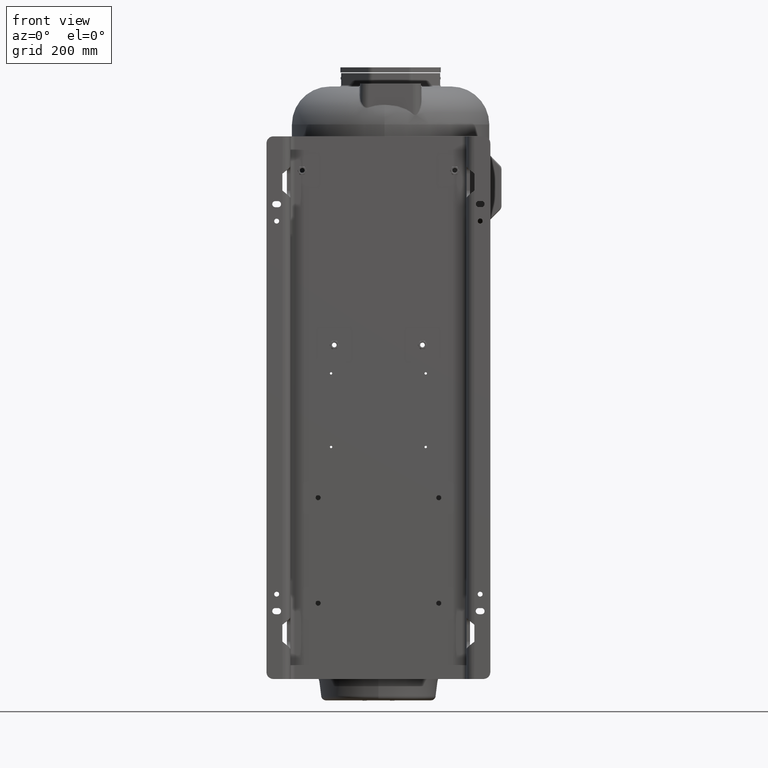
[diagram: clean part render]
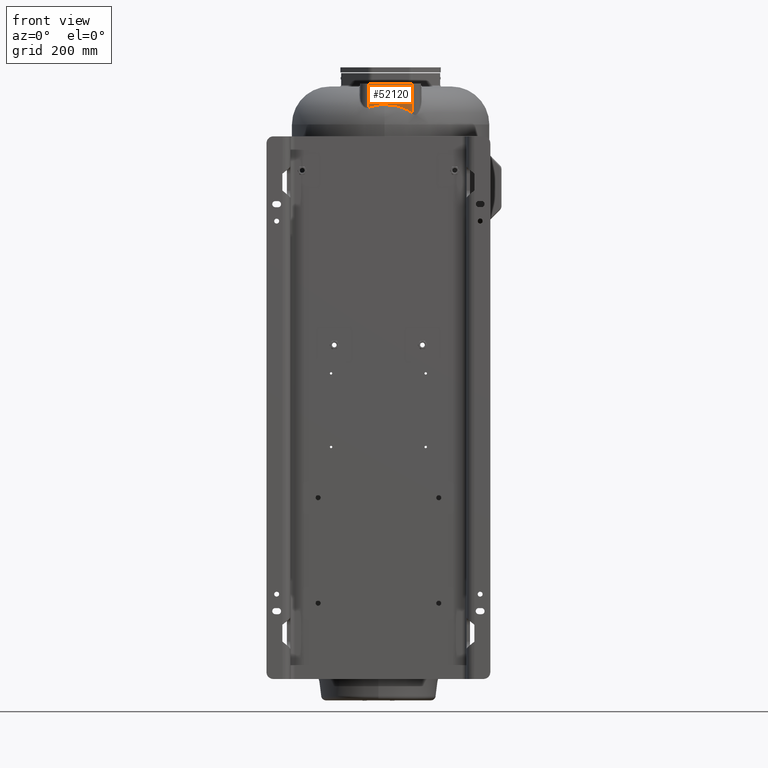
[diagram: same view with one face highlighted and labeled with its STEP entity id]
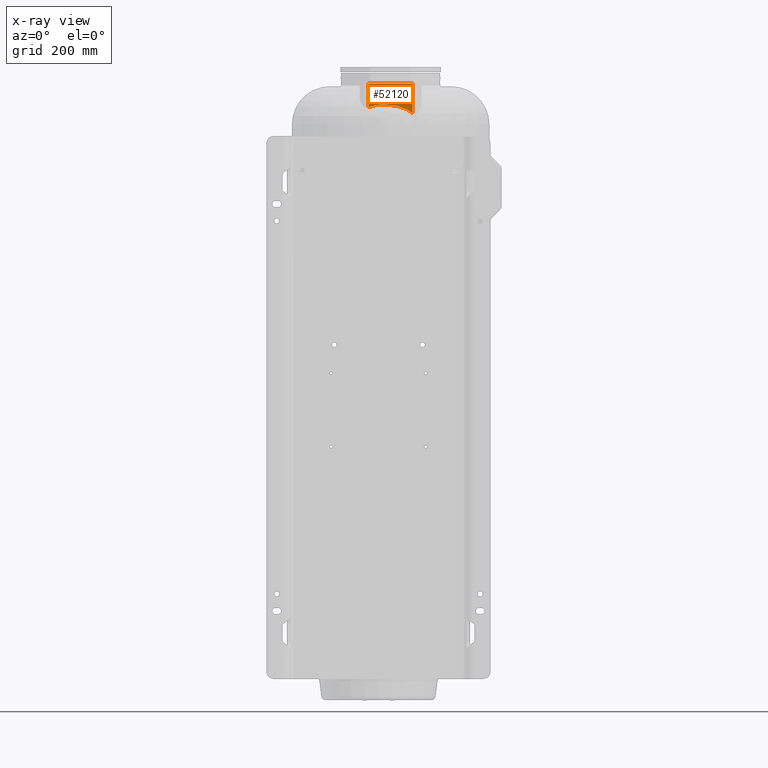
[diagram: x-ray of the same camera — body ghosted, the highlighted face saturated]
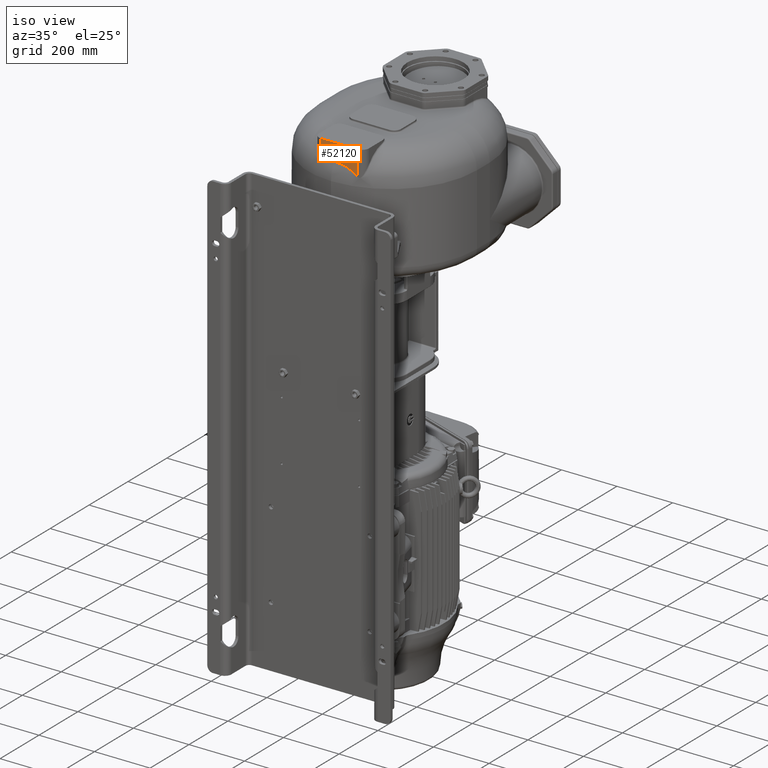
[diagram: same view with one face highlighted and labeled with its STEP entity id]
A machine part, front view. The second image highlights one B-rep face of the part: STEP entity #52120.
The next image is the same camera in x-ray: the body ghosted, the highlighted face saturated — about 0% of this face is hidden behind the body in this view.
A second angle (iso view) of the same face is appended — the face is thin or edge-on in the first view.
In plain terms, the highlighted planar face has unit normal (0, -1, 0).
Its self-contained STEP definition (entity closure, byte-faithful):
#16612=CARTESIAN_POINT('',(1.799999999999E1,3.500000116521E1,1.947877538268E2));
#16613=CARTESIAN_POINT('',(1.893111474395E1,3.500000259245E1,1.947877983079E2));
#16614=CARTESIAN_POINT('',(2.079200642048E1,3.499999879684E1,1.947731201491E2));
#16615=CARTESIAN_POINT('',(2.358170550593E1,3.500000032239E1,1.947063674517E2));
#16616=CARTESIAN_POINT('',(2.636264121826E1,3.499999991362E1,1.945950784415E2));
#16617=CARTESIAN_POINT('',(2.913025754608E1,3.500000002315E1,1.944395914431E2));
#16618=CARTESIAN_POINT('',(3.187934260217E1,3.499999999380E1,1.942405757118E2));
#16619=CARTESIAN_POINT('',(3.460493029411E1,3.500000000166E1,1.939989628785E2));
#16620=CARTESIAN_POINT('',(3.730198775214E1,3.499999999955E1,1.937160300688E2));
#16621=CARTESIAN_POINT('',(3.996583699470E1,3.500000000012E1,1.933931116169E2));
#16622=CARTESIAN_POINT('',(4.259345222702E1,3.499999999997E1,1.930310992011E2));
#16623=CARTESIAN_POINT('',(4.518172207805E1,3.500000000001E1,1.926311808253E2));
#16624=CARTESIAN_POINT('',(4.772764669143E1,3.5E1,1.921947288059E2));
#16625=CARTESIAN_POINT('',(5.022897804711E1,3.5E1,1.917231972042E2));
#16626=CARTESIAN_POINT('',(5.268357703894E1,3.5E1,1.912181717381E2));
#16627=CARTESIAN_POINT('',(5.508939654476E1,3.5E1,1.906814463528E2));
#16628=CARTESIAN_POINT('',(5.744452470279E1,3.5E1,1.901147131897E2));
#16629=CARTESIAN_POINT('',(5.974707574151E1,3.5E1,1.895193757112E2));
#16630=CARTESIAN_POINT('',(6.199510624818E1,3.5E1,1.888971405637E2));
#16631=CARTESIAN_POINT('',(6.418763942061E1,3.5E1,1.882496154371E2));
#16632=CARTESIAN_POINT('',(6.632488989263E1,3.5E1,1.875781709232E2));
#16633=CARTESIAN_POINT('',(6.840695051371E1,3.5E1,1.868842576085E2));
#16634=CARTESIAN_POINT('',(7.043407782946E1,3.5E1,1.861693799307E2));
#16635=CARTESIAN_POINT('',(7.240599497921E1,3.5E1,1.854350966972E2));
#16636=CARTESIAN_POINT('',(7.432231172984E1,3.5E1,1.846826993793E2));
#16637=CARTESIAN_POINT('',(7.618268082676E1,3.5E1,1.839136745427E2));
#16638=CARTESIAN_POINT('',(7.798766170244E1,3.5E1,1.831292224083E2));
#16639=CARTESIAN_POINT('',(7.973817062682E1,3.5E1,1.823304347967E2));
#16640=CARTESIAN_POINT('',(8.143518110957E1,3.5E1,1.815184001253E2));
#16641=CARTESIAN_POINT('',(8.307963300929E1,3.5E1,1.806942329532E2));
#16642=CARTESIAN_POINT('',(8.467183278011E1,3.5E1,1.798594198139E2));
#16643=CARTESIAN_POINT('',(8.621194640151E1,3.5E1,1.790150931046E2));
#16644=CARTESIAN_POINT('',(8.770005755409E1,3.5E1,1.781625353236E2));
#16645=CARTESIAN_POINT('',(8.913734260636E1,3.500000000001E1,1.773024972805E2));
#16646=CARTESIAN_POINT('',(9.052554471367E1,3.499999999996E1,1.764353710557E2));
#16647=CARTESIAN_POINT('',(9.186631532920E1,3.500000000014E1,1.755615571722E2));
#16648=CARTESIAN_POINT('',(9.316147768492E1,3.499999999946E1,1.746812767617E2));
#16649=CARTESIAN_POINT('',(9.441188438016E1,3.500000000202E1,1.737953709363E2));
#16650=CARTESIAN_POINT('',(9.561827029149E1,3.499999999247E1,1.729047891374E2));
#16651=CARTESIAN_POINT('',(9.678111693271E1,3.500000002811E1,1.720103593952E2));
#16652=CARTESIAN_POINT('',(9.790098148624E1,3.499999989511E1,1.711129100551E2));
#16653=CARTESIAN_POINT('',(9.897822254947E1,3.500000039145E1,1.702134451553E2));
#16654=CARTESIAN_POINT('',(1.000133803325E2,3.499999853908E1,1.693129966145E2));
#16655=CARTESIAN_POINT('',(1.006756331709E2,3.500000314784E1,1.687126186811E2));
#16656=CARTESIAN_POINT('',(1.009999999998E2,3.500000183762E1,1.684126001458E2));
#16658=CARTESIAN_POINT('',(-2.899999999901E1,3.499998976714E1,
1.869781190817E2));
#16659=CARTESIAN_POINT('',(-2.838536069959E1,3.499999021679E1,
1.872007819469E2));
#16660=CARTESIAN_POINT('',(-2.714078976666E1,3.500000454040E1,
1.876396049404E2));
#16661=CARTESIAN_POINT('',(-2.522692801615E1,3.499999878340E1,
1.882773657163E2));
#16662=CARTESIAN_POINT('',(-2.326779036685E1,3.500000032599E1,
1.888929807021E2));
#16663=CARTESIAN_POINT('',(-2.126442640740E1,3.499999991265E1,
1.894850744271E2));
#16664=CARTESIAN_POINT('',(-1.921828585659E1,3.500000002340E1,
1.900522985386E2));
#16665=CARTESIAN_POINT('',(-1.713015723382E1,3.499999999373E1,
1.905933469713E2));
#16666=CARTESIAN_POINT('',(-1.500029689803E1,3.500000000168E1,
1.911071206971E2));
#16667=CARTESIAN_POINT('',(-1.282949742840E1,3.499999999955E1,
1.915924407131E2));
#16668=CARTESIAN_POINT('',(-1.061990797847E1,3.500000000012E1,
1.920479609510E2));
#16669=CARTESIAN_POINT('',(-8.373576141043E0,3.499999999997E1,
1.924724735690E2));
#16670=CARTESIAN_POINT('',(-6.092672323828E0,3.500000000001E1,
1.928646296320E2));
#16671=CARTESIAN_POINT('',(-3.779390796406E0,3.499999999998E1,
1.932232576772E2));
#16672=CARTESIAN_POINT('',(-1.436611320847E0,3.500000000007E1,
1.935472246156E2));
#16673=CARTESIAN_POINT('',(9.326547189779E-1,3.499999999975E1,
1.938356126379E2));
#16674=CARTESIAN_POINT('',(3.325369967219E0,3.500000000092E1,1.940874894960E2));
#16675=CARTESIAN_POINT('',(5.738476184099E0,3.499999999656E1,1.943019708590E2));
#16676=CARTESIAN_POINT('',(8.168856589194E0,3.500000001285E1,1.944783744838E2));
#16677=CARTESIAN_POINT('',(1.061339080714E1,3.499999995203E1,1.946162067731E2));
#16678=CARTESIAN_POINT('',(1.306880971415E1,3.500000017901E1,1.947150777701E2));
#16679=CARTESIAN_POINT('',(1.553223909126E1,3.499999933193E1,1.947745575965E2));
#16680=CARTESIAN_POINT('',(1.717685724602E1,3.500000143950E1,1.947877623529E2));
#16681=CARTESIAN_POINT('',(1.799999999999E1,3.500000116521E1,1.947877538268E2));
#16683=DIRECTION('',(1.433698632230E-11,-1.482552827529E-7,-1.E0));
#16684=VECTOR('',#16683,6.902188091833E1);
#16685=CARTESIAN_POINT('',(-2.9E1,3.5E1,2.56E2));
#16686=LINE('',#16685,#16684);
#16958=CARTESIAN_POINT('',(1.009999999998E2,3.500000183762E1,1.684126001458E2));
#17044=DIRECTION('',(-2.146537152548E-12,2.098037370556E-8,-1.E0));
#17045=VECTOR('',#17044,8.758739985421E1);
#17046=CARTESIAN_POINT('',(1.01E2,3.5E1,2.56E2));
#17047=LINE('',#17046,#17045);
#17071=DIRECTION('',(1.E0,0.E0,0.E0));
#17072=VECTOR('',#17071,1.3E2);
#17073=CARTESIAN_POINT('',(-2.9E1,3.5E1,2.56E2));
#17074=LINE('',#17073,#17072);
#31933=CARTESIAN_POINT('',(-2.9E1,3.5E1,2.56E2));
#31934=VERTEX_POINT('',#31933);
#31935=CARTESIAN_POINT('',(1.01E2,3.5E1,2.56E2));
#31936=VERTEX_POINT('',#31935);
#31945=VERTEX_POINT('',#16958);
#31948=VERTEX_POINT('',#16612);
#31950=VERTEX_POINT('',#16658);
#52105=CARTESIAN_POINT('',(-2.9E1,3.5E1,2.56E2));
#52106=DIRECTION('',(0.E0,-1.E0,0.E0));
#52107=DIRECTION('',(1.E0,0.E0,0.E0));
#52108=AXIS2_PLACEMENT_3D('',#52105,#52106,#52107);
#52109=PLANE('',#52108);
#52110=ORIENTED_EDGE('',*,*,#52099,.F.);
#52111=ORIENTED_EDGE('',*,*,#51700,.F.);
#52113=ORIENTED_EDGE('',*,*,#52112,.F.);
#52115=ORIENTED_EDGE('',*,*,#52114,.T.);
#52117=ORIENTED_EDGE('',*,*,#52116,.T.);
#52118=EDGE_LOOP('',(#52110,#52111,#52113,#52115,#52117));
#52119=FACE_OUTER_BOUND('',#52118,.F.);
#52120=ADVANCED_FACE('',(#52119),#52109,.T.);
#16657=B_SPLINE_CURVE_WITH_KNOTS('',3,(#16612,#16613,#16614,#16615,#16616,
#16617,#16618,#16619,#16620,#16621,#16622,#16623,#16624,#16625,#16626,#16627,
#16628,#16629,#16630,#16631,#16632,#16633,#16634,#16635,#16636,#16637,#16638,
#16639,#16640,#16641,#16642,#16643,#16644,#16645,#16646,#16647,#16648,#16649,
#16650,#16651,#16652,#16653,#16654,#16655,#16656),.UNSPECIFIED.,.F.,.F.,(4,1,1,
1,1,1,1,1,1,1,1,1,1,1,1,1,1,1,1,1,1,1,1,1,1,1,1,1,1,1,1,1,1,1,1,1,1,1,1,1,1,1,
4),(0.E0,2.380952380952E-2,4.761904761905E-2,7.142857142857E-2,
9.523809523810E-2,1.190476190476E-1,1.428571428571E-1,1.666666666667E-1,
1.904761904762E-1,2.142857142857E-1,2.380952380952E-1,2.619047619048E-1,
2.857142857143E-1,3.095238095238E-1,3.333333333333E-1,3.571428571429E-1,
3.809523809524E-1,4.047619047619E-1,4.285714285714E-1,4.523809523810E-1,
4.761904761905E-1,5.E-1,5.238095238095E-1,5.476190476190E-1,5.714285714286E-1,
5.952380952381E-1,6.190476190476E-1,6.428571428571E-1,6.666666666667E-1,
6.904761904762E-1,7.142857142857E-1,7.380952380952E-1,7.619047619048E-1,
7.857142857143E-1,8.095238095238E-1,8.333333333333E-1,8.571428571429E-1,
8.809523809524E-1,9.047619047619E-1,9.285714285714E-1,9.523809523810E-1,
9.761904761905E-1,1.E0),.UNSPECIFIED.);
#16682=B_SPLINE_CURVE_WITH_KNOTS('',3,(#16658,#16659,#16660,#16661,#16662,
#16663,#16664,#16665,#16666,#16667,#16668,#16669,#16670,#16671,#16672,#16673,
#16674,#16675,#16676,#16677,#16678,#16679,#16680,#16681),.UNSPECIFIED.,.F.,.F.,(
4,1,1,1,1,1,1,1,1,1,1,1,1,1,1,1,1,1,1,1,1,4),(0.E0,4.761904761905E-2,
9.523809523810E-2,1.428571428571E-1,1.904761904762E-1,2.380952380952E-1,
2.857142857143E-1,3.333333333333E-1,3.809523809524E-1,4.285714285714E-1,
4.761904761905E-1,5.238095238095E-1,5.714285714286E-1,6.190476190476E-1,
6.666666666667E-1,7.142857142857E-1,7.619047619048E-1,8.095238095238E-1,
8.571428571429E-1,9.047619047619E-1,9.523809523810E-1,1.E0),.UNSPECIFIED.);
#51700=EDGE_CURVE('',#31950,#31948,#16682,.T.);
#52099=EDGE_CURVE('',#31948,#31945,#16657,.T.);
#52112=EDGE_CURVE('',#31934,#31950,#16686,.T.);
#52114=EDGE_CURVE('',#31934,#31936,#17074,.T.);
#52116=EDGE_CURVE('',#31936,#31945,#17047,.T.);